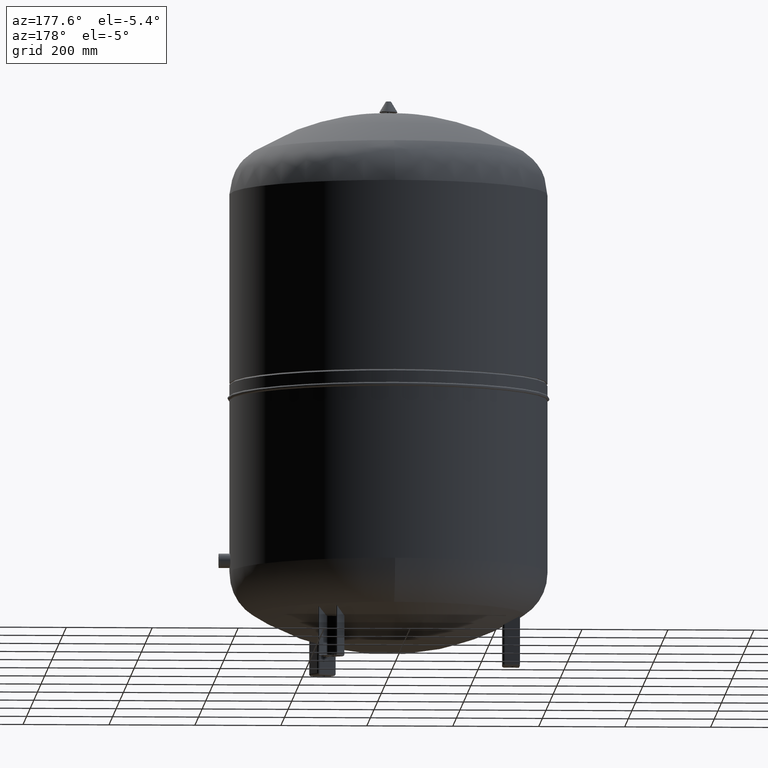
[diagram: clean part render]
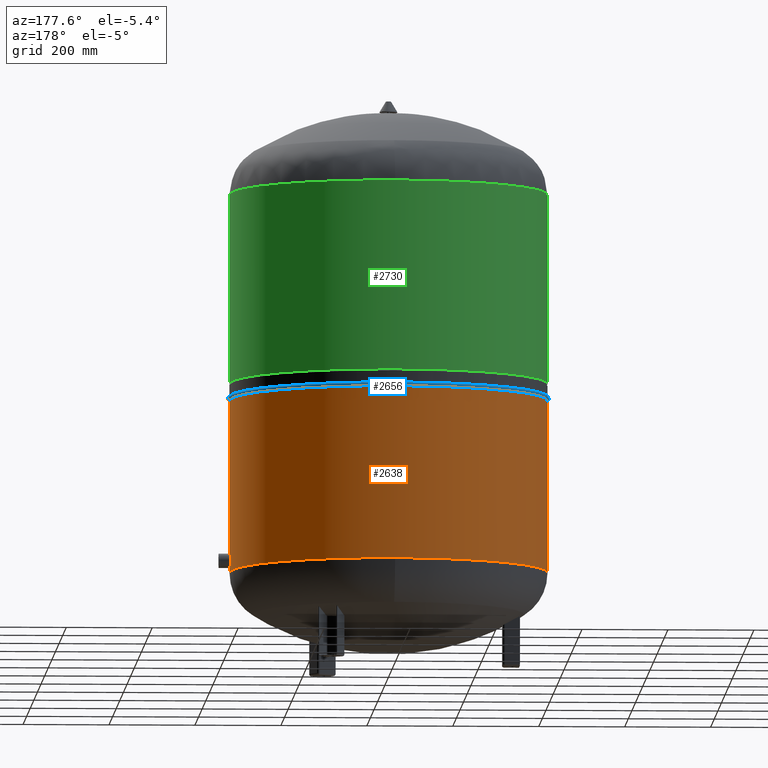
[diagram: same view with three faces highlighted in distinct colors, each labeled with its STEP entity id]
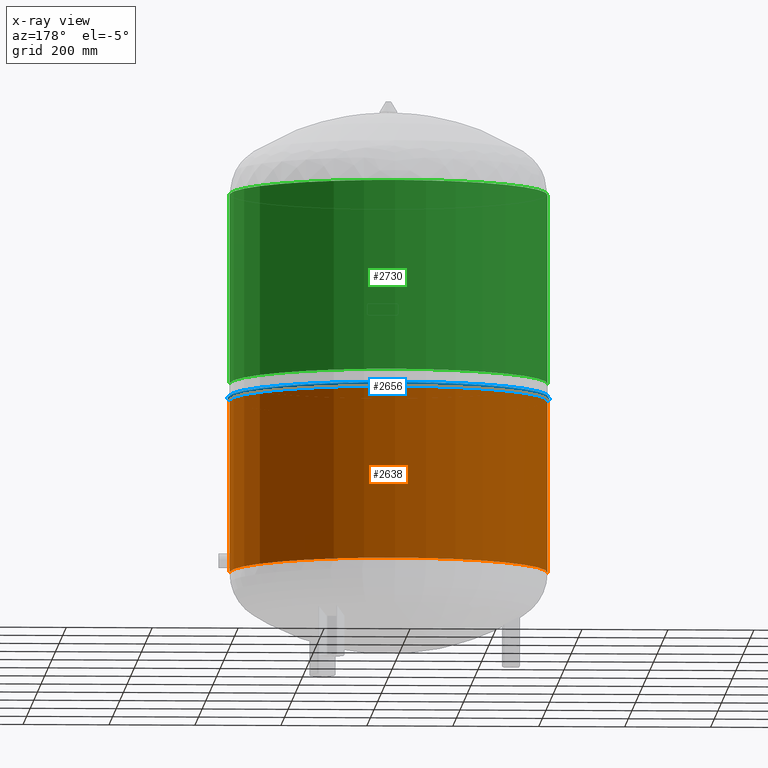
[diagram: x-ray of the same camera — body ghosted, the three highlighted faces saturated]
A machine part, auxiliary view with three faces highlighted in distinct colors.
The next image is the same camera in x-ray (body ghosted, the three faces saturated) — at least one of them is partly hidden behind the body in this view.
Their STEP definitions:

[orange] entity #2638 — the highlighted cylindrical surface (partial cylindrical patch) has radius 370 mm, axis along (0, 0, 1).
#2544=CARTESIAN_POINT('',(369.999999999999720,0.0,620.600000000000020));
#2545=VERTEX_POINT('',#2544);
#2554=CARTESIAN_POINT('',(-369.999999999999890,-4.531044E-014,620.600000000000020));
#2555=VERTEX_POINT('',#2554);
#2578=CARTESIAN_POINT('',(369.999999999999940,0.0,218.999999999999890));
#2579=VERTEX_POINT('',#2578);
#2580=CARTESIAN_POINT('',(369.999999999999720,0.0,620.600000000000020));
#2581=DIRECTION('',(0.0,0.0,-1.0));
#2582=VECTOR('',#2581,401.600000000000140);
#2583=LINE('',#2580,#2582);
#2584=EDGE_CURVE('',#2545,#2579,#2583,.T.);
#2587=CARTESIAN_POINT('',(-369.999999999999890,-4.531044E-014,218.999999999999860));
#2588=VERTEX_POINT('',#2587);
#2589=CARTESIAN_POINT('',(-369.999999999999890,-4.531044E-014,620.600000000000020));
#2590=DIRECTION('',(0.0,0.0,-1.0));
#2591=VECTOR('',#2590,401.600000000000140);
#2592=LINE('',#2589,#2591);
#2593=EDGE_CURVE('',#2555,#2588,#2592,.T.);
#2610=CARTESIAN_POINT('',(-1.668796E-014,0.0,218.999999999999830));
#2611=DIRECTION('',(0.0,0.0,1.0));
#2612=DIRECTION('',(1.0,0.0,0.0));
#2613=AXIS2_PLACEMENT_3D('',#2610,#2611,#2612);
#2614=CIRCLE('',#2613,369.999999999999940);
#2615=EDGE_CURVE('',#2579,#2588,#2614,.T.);
#2621=CARTESIAN_POINT('',(-9.089454E-015,0.0,419.799999999999950));
#2622=DIRECTION('',(3.784119E-017,0.0,1.0));
#2623=DIRECTION('',(1.0,0.0,0.0));
#2624=AXIS2_PLACEMENT_3D('',#2621,#2622,#2623);
#2625=CYLINDRICAL_SURFACE('',#2624,369.999999999999890);
#2626=ORIENTED_EDGE('',*,*,#2584,.T.);
#2627=ORIENTED_EDGE('',*,*,#2615,.T.);
#2628=ORIENTED_EDGE('',*,*,#2593,.F.);
#2629=CARTESIAN_POINT('',(-1.490943E-015,0.0,620.600000000000020));
#2630=DIRECTION('',(0.0,0.0,1.0));
#2631=DIRECTION('',(1.0,0.0,0.0));
#2632=AXIS2_PLACEMENT_3D('',#2629,#2630,#2631);
#2633=CIRCLE('',#2632,369.999999999999720);
#2634=EDGE_CURVE('',#2545,#2555,#2633,.T.);
#2635=ORIENTED_EDGE('',*,*,#2634,.F.);
#2636=EDGE_LOOP('',(#2626,#2627,#2628,#2635));
#2637=FACE_OUTER_BOUND('',#2636,.T.);
#2638=ADVANCED_FACE('',(#2637),#2625,.T.);

[blue] entity #2656 — the highlighted toroidal blend (fillet) surface has major radius 370 mm and minor (blend) radius 4.4 mm.
#2512=CARTESIAN_POINT('',(369.999999999999720,0.0,629.399999999999980));
#2513=VERTEX_POINT('',#2512);
#2521=CARTESIAN_POINT('',(-369.999999999999720,-4.531044E-014,629.400000000000090));
#2522=VERTEX_POINT('',#2521);
#2544=CARTESIAN_POINT('',(369.999999999999720,0.0,620.600000000000020));
#2545=VERTEX_POINT('',#2544);
#2546=CARTESIAN_POINT('',(369.999999999999720,0.0,625.0));
#2547=DIRECTION('',(0.0,1.0,0.0));
#2548=DIRECTION('',(1.0,0.0,0.0));
#2549=AXIS2_PLACEMENT_3D('',#2546,#2547,#2548);
#2550=CIRCLE('',#2549,4.400000000000000);
#2551=EDGE_CURVE('',#2513,#2545,#2550,.T.);
#2554=CARTESIAN_POINT('',(-369.999999999999890,-4.531044E-014,620.600000000000020));
#2555=VERTEX_POINT('',#2554);
#2556=CARTESIAN_POINT('',(-369.999999999999720,-4.531044E-014,625.0));
#2557=DIRECTION('',(0.0,-1.0,0.0));
#2558=DIRECTION('',(-1.0,0.0,0.0));
#2559=AXIS2_PLACEMENT_3D('',#2556,#2557,#2558);
#2560=CIRCLE('',#2559,4.400000000000000);
#2561=EDGE_CURVE('',#2522,#2555,#2560,.T.);
#2629=CARTESIAN_POINT('',(-1.490943E-015,0.0,620.600000000000020));
#2630=DIRECTION('',(0.0,0.0,1.0));
#2631=DIRECTION('',(1.0,0.0,0.0));
#2632=AXIS2_PLACEMENT_3D('',#2629,#2630,#2631);
#2633=CIRCLE('',#2632,369.999999999999720);
#2634=EDGE_CURVE('',#2545,#2555,#2633,.T.);
#2639=CARTESIAN_POINT('',(0.0,0.0,625.0));
#2640=DIRECTION('',(3.784119E-017,0.0,1.0));
#2641=DIRECTION('',(1.0,0.0,0.0));
#2642=AXIS2_PLACEMENT_3D('',#2639,#2640,#2641);
#2643=TOROIDAL_SURFACE('',#2642,369.999999999999720,4.400000000000000);
#2644=ORIENTED_EDGE('',*,*,#2551,.T.);
#2645=ORIENTED_EDGE('',*,*,#2634,.T.);
#2646=ORIENTED_EDGE('',*,*,#2561,.F.);
#2647=CARTESIAN_POINT('',(-1.157940E-015,0.0,629.399999999999980));
#2648=DIRECTION('',(0.0,0.0,1.0));
#2649=DIRECTION('',(1.0,0.0,0.0));
#2650=AXIS2_PLACEMENT_3D('',#2647,#2648,#2649);
#2651=CIRCLE('',#2650,369.999999999999720);
#2652=EDGE_CURVE('',#2513,#2522,#2651,.T.);
#2653=ORIENTED_EDGE('',*,*,#2652,.F.);
#2654=EDGE_LOOP('',(#2644,#2645,#2646,#2653));
#2655=FACE_OUTER_BOUND('',#2654,.T.);
#2656=ADVANCED_FACE('',(#2655),#2643,.T.);

[green] entity #2730 — the highlighted cylindrical surface (partial cylindrical patch) has radius 370 mm, axis along (0, 0, 1).
#2428=CARTESIAN_POINT('',(370.0,0.0,1101.0));
#2429=VERTEX_POINT('',#2428);
#2430=CARTESIAN_POINT('',(369.999999999999890,0.0,660.0));
#2431=VERTEX_POINT('',#2430);
#2432=CARTESIAN_POINT('',(370.0,0.0,1101.0));
#2433=DIRECTION('',(0.0,0.0,-1.0));
#2434=VECTOR('',#2433,441.0);
#2435=LINE('',#2432,#2434);
#2436=EDGE_CURVE('',#2429,#2431,#2435,.T.);
#2438=CARTESIAN_POINT('',(-369.999999999999940,-4.531044E-014,1101.0));
#2439=VERTEX_POINT('',#2438);
#2447=CARTESIAN_POINT('',(-369.999999999999940,-4.531044E-014,660.0));
#2448=VERTEX_POINT('',#2447);
#2449=CARTESIAN_POINT('',(-369.999999999999940,-4.531044E-014,1101.0));
#2450=DIRECTION('',(0.0,0.0,-1.0));
#2451=VECTOR('',#2450,441.0);
#2452=LINE('',#2449,#2451);
#2453=EDGE_CURVE('',#2439,#2448,#2452,.T.);
#2698=CARTESIAN_POINT('',(0.0,0.0,660.0));
#2699=DIRECTION('',(0.0,0.0,1.0));
#2700=DIRECTION('',(1.0,0.0,0.0));
#2701=AXIS2_PLACEMENT_3D('',#2698,#2699,#2700);
#2702=CIRCLE('',#2701,369.999999999999890);
#2703=EDGE_CURVE('',#2431,#2448,#2702,.T.);
#2713=CARTESIAN_POINT('',(8.343982E-015,0.0,880.500000000000000));
#2714=DIRECTION('',(3.784119E-017,0.0,1.0));
#2715=DIRECTION('',(1.0,0.0,0.0));
#2716=AXIS2_PLACEMENT_3D('',#2713,#2714,#2715);
#2717=CYLINDRICAL_SURFACE('',#2716,369.999999999999940);
#2718=ORIENTED_EDGE('',*,*,#2436,.T.);
#2719=ORIENTED_EDGE('',*,*,#2703,.T.);
#2720=ORIENTED_EDGE('',*,*,#2453,.F.);
#2721=CARTESIAN_POINT('',(1.668796E-014,0.0,1101.0));
#2722=DIRECTION('',(0.0,0.0,1.0));
#2723=DIRECTION('',(1.0,0.0,0.0));
#2724=AXIS2_PLACEMENT_3D('',#2721,#2722,#2723);
#2725=CIRCLE('',#2724,370.0);
#2726=EDGE_CURVE('',#2429,#2439,#2725,.T.);
#2727=ORIENTED_EDGE('',*,*,#2726,.F.);
#2728=EDGE_LOOP('',(#2718,#2719,#2720,#2727));
#2729=FACE_OUTER_BOUND('',#2728,.T.);
#2730=ADVANCED_FACE('',(#2729),#2717,.T.);